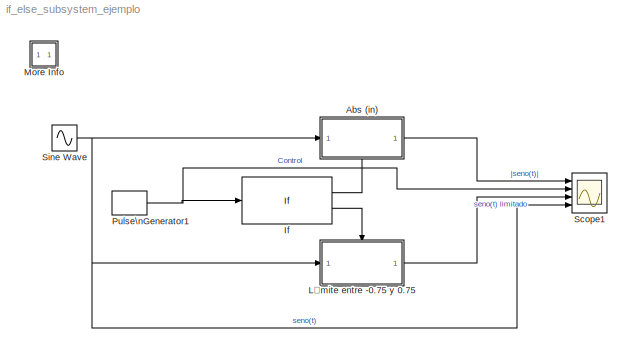
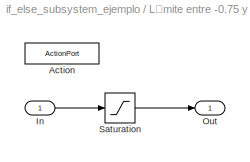
MODEL if_else_subsystem_ejemplo
KIND model
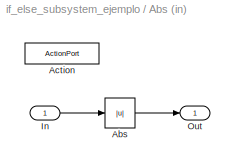
BLOCK [SubSystem] Abs (in)
  FunctionWithSeparateData = off
  MaskHideContents = off
  MinAlgLoopOccurrences = off
  Opaque = off
  Ports = [1, 1, 0, 0, 0, 0, 0, 1]
  PropExecContextOutsideSubsystem = off
  RTWSystemCode = Auto
  RequestExecContextInheritance = off
  TreatAsAtomicUnit = on
BLOCK [Abs] Abs (in)/Abs
BLOCK [ActionPort] Abs (in)/Action
  ActionType = then
  InitializeStates = reset
BLOCK [Inport] Abs (in)/In
  IconDisplay = Port number
  OutDataType = sfix(16)
  OutScaling = 2^0
BLOCK [Outport] Abs (in)/Out
  IconDisplay = Port number
  InitialOutput = 0
  OutDataType = sfix(16)
  OutScaling = 2^0
  OutputWhenDisabled = reset
BLOCK [If] If
  Ports = [1, 2]
BLOCK [SubSystem] Límite entre -0.75 y 0.75
  FunctionWithSeparateData = off
  MaskHideContents = off
  MinAlgLoopOccurrences = off
  Opaque = off
  Ports = [1, 1, 0, 0, 0, 0, 0, 1]
  PropExecContextOutsideSubsystem = off
  RTWSystemCode = Auto
  RequestExecContextInheritance = off
  TreatAsAtomicUnit = on
BLOCK [ActionPort] Límite entre -0.75 y 0.75/Action
  ActionType = else
BLOCK [Inport] Límite entre -0.75 y 0.75/In
  IconDisplay = Port number
  OutDataType = sfix(16)
  OutScaling = 2^0
BLOCK [Outport] Límite entre -0.75 y 0.75/Out
  IconDisplay = Port number
  OutDataType = sfix(16)
  OutScaling = 2^0
BLOCK [Saturate] Límite entre -0.75 y 0.75/Saturation
  LowerLimit = -0.75
  UpperLimit = 0.75
BLOCK [SubSystem] More Info
  FunctionWithSeparateData = off
  MaskDisplay = disp('?')
  MaskHideContents = off
  MaskIconFrame = on
  MaskIconOpaque = on
  MaskIconRotate = none
  MaskIconUnits = autoscale
  MinAlgLoopOccurrences = off
  Opaque = off
  OpenFcn = showdemo(bdroot(gcb))
  Ports = []
  PropExecContextOutsideSubsystem = off
  RTWSystemCode = Auto
  RequestExecContextInheritance = off
BLOCK [DiscretePulseGenerator] Pulse\nGenerator1
  AttributesFormatString = Period: %<period>\\nDuty cycle: %<pulsewidth>%
  Period = 5
  Ports = [0, 1]
  PulseType = Time based
  PulseWidth = 50
BLOCK [Scope] Scope1
  DataFormat = Structure
  Floating = off
  NumInputPorts = 4
  Ports = [4]
  SampleTime = 0
  SaveName = ScopeData1
  StartFcn = open_system(gcbh)
  TickLabels = on
  TimeRange = 10
  YMax = 3.6~1.1~3.5~5
  YMin = -1.6~-0.1~-1.5~-5
BLOCK [Sin] Sine Wave
  Ports = [0, 1]
  SampleTime = 0
LINE Abs (in)/Abs:1 -> Abs (in)/Out:1
LINE Abs (in)/In:1 -> Abs (in)/Abs:1
LINE Abs (in):1 -> Scope1:1
LINE If:1 -> Abs (in):ifaction
LINE If:2 -> Límite entre -0.75 y 0.75:ifaction
LINE Límite entre -0.75 y 0.75/In:1 -> Límite entre -0.75 y 0.75/Saturation:1
LINE Límite entre -0.75 y 0.75/Saturation:1 -> Límite entre -0.75 y 0.75/Out:1
LINE Límite entre -0.75 y 0.75:1 -> Scope1:3
NET Pulse\nGenerator1:1 -> If:1, Scope1:2
NET Sine Wave:1 -> Abs (in):1, Límite entre -0.75 y 0.75:1, Scope1:4
note: NET lines group one-source signal fan-out (src -> all destinations, sorted); 1:1 wires keep LINE
